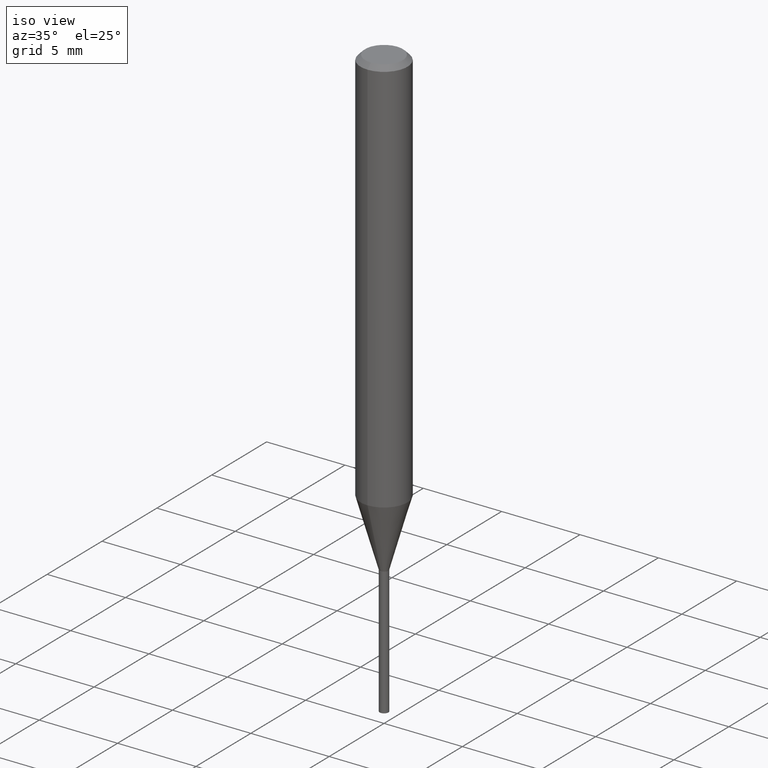
[diagram: clean part render]
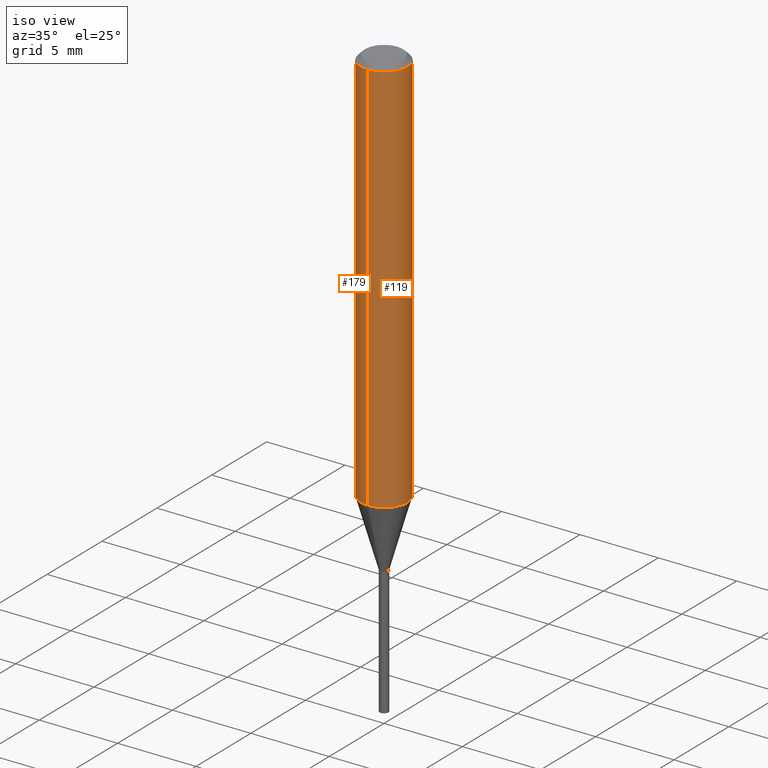
[diagram: same view with one multi-face feature highlighted, each face labeled with its STEP entity id]
A machine part, iso view. The highlighted faces form ONE feature: a constant-radius fillet chain: 2 tangent blend faces with common blend radius 1.5 mm. The faces share edges in the B-rep.
Their STEP definitions:
[1] entity #179 (Cylinder):
#91=EDGE_CURVE('',#117,#145,#226,.T.);
#101=VERTEX_POINT('',#236);
#117=VERTEX_POINT('',#252);
#129=VERTEX_POINT('',#267);
#135=EDGE_CURVE('',#129,#145,#273,.T.);
#145=VERTEX_POINT('',#284);
#173=EDGE_CURVE('',#129,#101,#316,.T.);
#179=ADVANCED_FACE('',(#323),#324,.T.);
#199=EDGE_CURVE('',#101,#117,#349,.T.);
#226=LINE('',#369,#370);
#236=CARTESIAN_POINT('',(1.83690953073357E-016,-1.5,-0.300000000000001));
#252=CARTESIAN_POINT('',(0.0,1.5,-0.300000000000001));
#267=CARTESIAN_POINT('',(1.83690953073357E-016,-1.5,-25.428));
#273=CIRCLE('',#433,1.5);
#284=CARTESIAN_POINT('',(0.0,1.5,-25.428));
#316=LINE('',#489,#490);
#323=FACE_OUTER_BOUND('',#497,.T.);
#324=CYLINDRICAL_SURFACE('',#498,1.5);
#349=CIRCLE('',#525,1.5);
#369=CARTESIAN_POINT('',(-1.83690953073357E-016,1.5,-12.864));
#370=VECTOR('',#535,1.0);
#433=AXIS2_PLACEMENT_3D('',#582,#583,#584);
#489=CARTESIAN_POINT('',(1.83690953073357E-016,-1.5,-12.864));
#490=VECTOR('',#639,1.0);
#497=EDGE_LOOP('',(#647,#648,#649,#650));
#498=AXIS2_PLACEMENT_3D('',#651,#652,#653);
#525=AXIS2_PLACEMENT_3D('',#694,#695,#696);
#535=DIRECTION('',(0.0,0.0,-1.0));
#582=CARTESIAN_POINT('',(0.0,0.0,-25.428));
#583=DIRECTION('',(0.0,0.0,-1.0));
#584=DIRECTION('',(0.0,1.0,0.0));
#639=DIRECTION('',(-0.0,-0.0,1.0));
#647=ORIENTED_EDGE('',*,*,#91,.T.);
#648=ORIENTED_EDGE('',*,*,#135,.F.);
#649=ORIENTED_EDGE('',*,*,#173,.T.);
#650=ORIENTED_EDGE('',*,*,#199,.T.);
#651=CARTESIAN_POINT('',(0.0,0.0,-12.864));
#652=DIRECTION('',(-0.0,-0.0,1.0));
#653=DIRECTION('',(0.0,1.0,0.0));
#694=CARTESIAN_POINT('',(0.0,0.0,-0.300000000000001));
#695=DIRECTION('',(0.0,0.0,-1.0));
#696=DIRECTION('',(0.0,1.0,0.0));
[2] entity #119 (Cylinder):
#91=EDGE_CURVE('',#117,#145,#226,.T.);
#101=VERTEX_POINT('',#236);
#117=VERTEX_POINT('',#252);
#119=ADVANCED_FACE('',(#254),#255,.T.);
#129=VERTEX_POINT('',#267);
#145=VERTEX_POINT('',#284);
#161=EDGE_CURVE('',#117,#101,#302,.T.);
#163=EDGE_CURVE('',#145,#129,#304,.T.);
#173=EDGE_CURVE('',#129,#101,#316,.T.);
#226=LINE('',#369,#370);
#236=CARTESIAN_POINT('',(1.83690953073357E-016,-1.5,-0.300000000000001));
#252=CARTESIAN_POINT('',(0.0,1.5,-0.300000000000001));
#254=FACE_OUTER_BOUND('',#409,.T.);
#255=CYLINDRICAL_SURFACE('',#410,1.5);
#267=CARTESIAN_POINT('',(1.83690953073357E-016,-1.5,-25.428));
#284=CARTESIAN_POINT('',(0.0,1.5,-25.428));
#302=CIRCLE('',#472,1.5);
#304=CIRCLE('',#475,1.5);
#316=LINE('',#489,#490);
#369=CARTESIAN_POINT('',(-1.83690953073357E-016,1.5,-12.864));
#370=VECTOR('',#535,1.0);
#409=EDGE_LOOP('',(#554,#555,#556,#557));
#410=AXIS2_PLACEMENT_3D('',#558,#559,#560);
#472=AXIS2_PLACEMENT_3D('',#614,#615,#616);
#475=AXIS2_PLACEMENT_3D('',#617,#618,#619);
#489=CARTESIAN_POINT('',(1.83690953073357E-016,-1.5,-12.864));
#490=VECTOR('',#639,1.0);
#535=DIRECTION('',(0.0,0.0,-1.0));
#554=ORIENTED_EDGE('',*,*,#91,.F.);
#555=ORIENTED_EDGE('',*,*,#161,.T.);
#556=ORIENTED_EDGE('',*,*,#173,.F.);
#557=ORIENTED_EDGE('',*,*,#163,.F.);
#558=CARTESIAN_POINT('',(0.0,0.0,-12.864));
#559=DIRECTION('',(-0.0,-0.0,1.0));
#560=DIRECTION('',(0.0,1.0,0.0));
#614=CARTESIAN_POINT('',(0.0,0.0,-0.300000000000001));
#615=DIRECTION('',(0.0,0.0,-1.0));
#616=DIRECTION('',(0.0,1.0,0.0));
#617=CARTESIAN_POINT('',(0.0,0.0,-25.428));
#618=DIRECTION('',(0.0,0.0,-1.0));
#619=DIRECTION('',(0.0,1.0,0.0));
#639=DIRECTION('',(-0.0,-0.0,1.0));